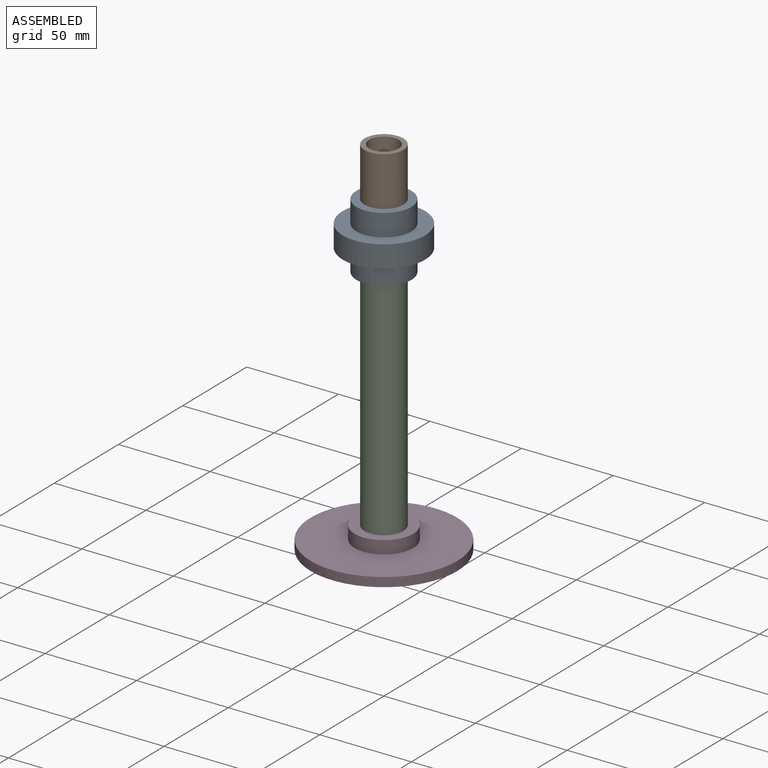
[diagram: assembled view]
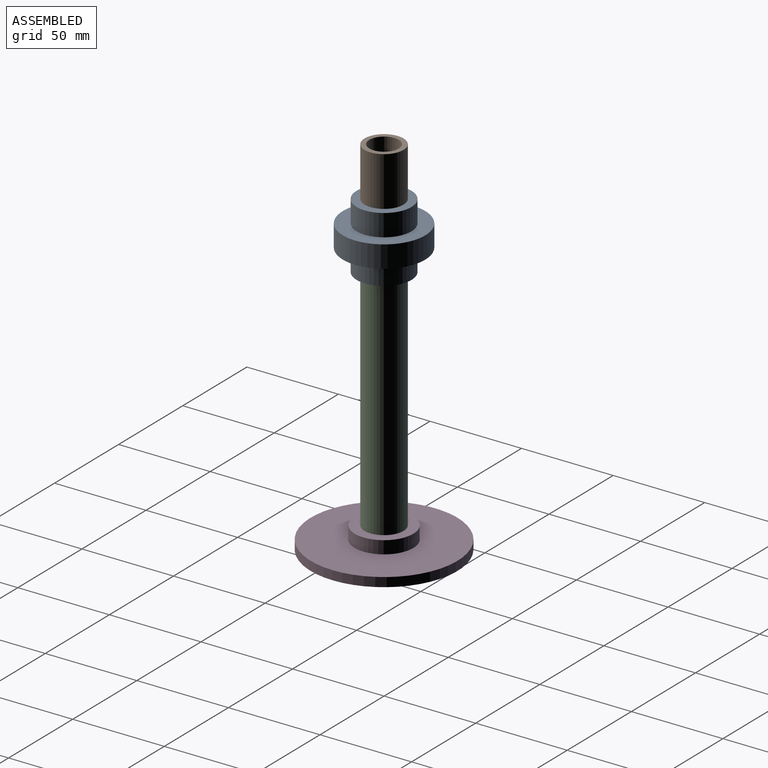
[diagram: assembled view, second angle]
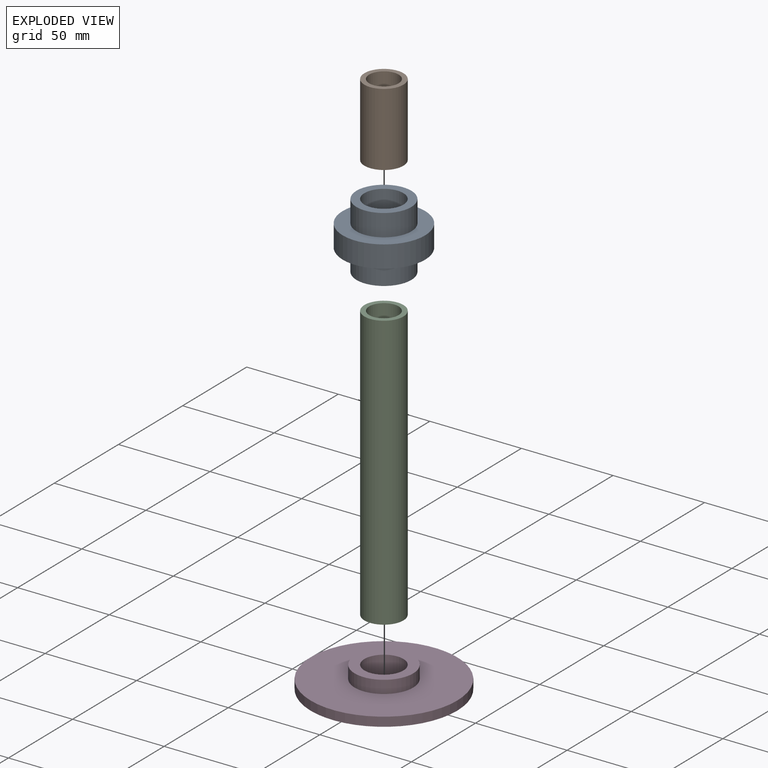
[diagram: exploded view]
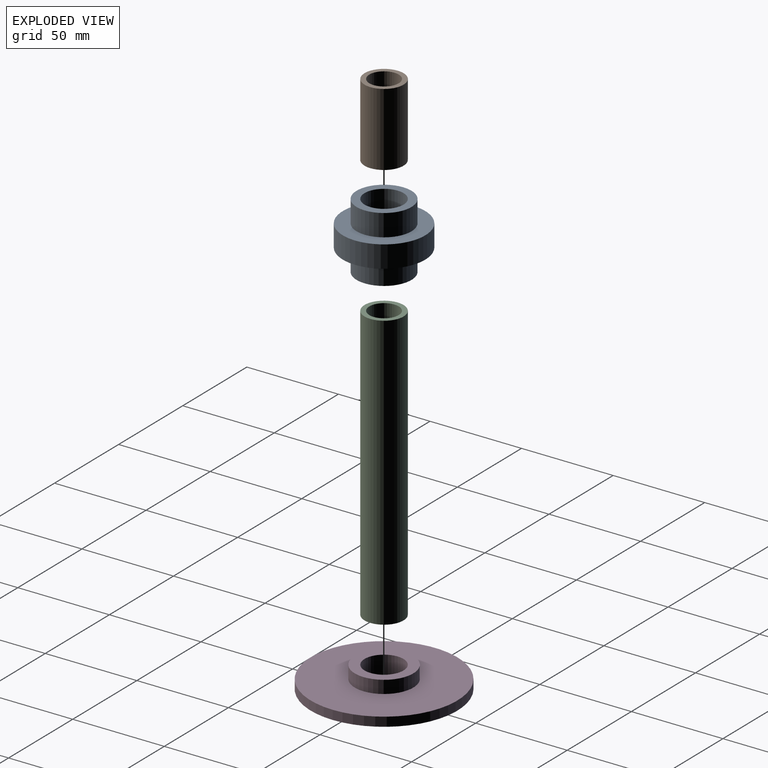
[diagram: exploded view, second angle]
ASSEMBLY  parts=4 mates=3
PART A: 12 faces, bbox 45x45x36 mm
  f0: cylinder r=15mm len=30mm, axis (0,0,-1), area 1131mm2, adj f8,f11
  f1: cylinder r=9.5mm len=19mm, axis (0,0,-1), area 596.9mm2, adj f2,f3
  f2: plane 21.3x21.3mm, normal (0,0,1), area 72.8mm2, adj f1,f5
  f3: plane 21.3x21.3mm, normal (0,0,-1), area 72.8mm2, adj f1,f4
  f4: cylinder r=10.65mm len=21.3mm, axis (0,0,-1), area 869.9mm2, adj f3,f8
  f5: cylinder r=10.65mm len=21.3mm, axis (0,0,-1), area 869.9mm2, adj f2,f7
  f6: cylinder r=15mm len=30mm, axis (0,0,-1), area 1131mm2, adj f7,f10
  f7: plane 30x30mm, normal (0,0,1), area 350.5mm2, adj f5,f6
  f8: plane 30x30mm, normal (0,0,-1), area 350.5mm2, adj f0,f4
  f9: cylinder r=22.5mm len=45mm, axis (0,0,-1), area 1696.5mm2, adj f10,f11
  f10: plane 45x45mm, normal (0,0,1), area 883.6mm2, adj f6,f9
  f11: plane 45x45mm, normal (0,0,-1), area 883.6mm2, adj f0,f9
PART B: 4 faces, bbox 21.3x21.3x40 mm
  f0: cylinder r=8.05mm len=40mm, axis (0,0,-1), area 2023.2mm2, adj f2,f3
  f1: cylinder r=10.65mm len=40mm, axis (0,0,-1), area 2676.6mm2, adj f2,f3
  f2: plane 21.3x21.3mm, normal (0,0,1), area 152.7mm2, adj f0,f1
  f3: plane 21.3x21.3mm, normal (0,0,-1), area 152.7mm2, adj f0,f1
PART C: 4 faces, bbox 21.3x21.3x150 mm
  f0: cylinder r=8.05mm len=150mm, axis (0,0,-1), area 7586.9mm2, adj f2,f3
  f1: cylinder r=10.65mm len=150mm, axis (0,0,-1), area 10037.4mm2, adj f2,f3
  f2: plane 21.3x21.3mm, normal (0,0,1), area 152.7mm2, adj f0,f1
  f3: plane 21.3x21.3mm, normal (0,0,-1), area 152.7mm2, adj f0,f1
PART D: 6 faces, bbox 80x80x12 mm
  f0: cylinder r=10.65mm len=21.3mm, axis (0,0,-1), area 803mm2, adj f2,f3
  f1: cylinder r=16mm len=32mm, axis (0,0,-1), area 703.7mm2, adj f2,f5
  f2: plane 32x32mm, normal (0,0,1), area 447.9mm2, adj f0,f1
  f3: plane 80x80mm, normal (0,0,-1), area 4670.2mm2, adj f0,f4
  f4: cylinder r=40mm len=80mm, axis (0,0,-1), area 1256.6mm2, adj f3,f5
  f5: plane 80x80mm, normal (0,0,1), area 4222.3mm2, adj f1,f4
PLACE A rot(axis=(1,0,0),180deg) t=(50,-50,155)mm
PLACE B rot(axis=(1,0,0),180deg) t=(90,0,200)mm
PLACE C t=(-60,0,0)mm
PLACE D t=(-150,80,0)mm
MATE fastened A.f0 <-> C.f1  axis (0,0,-1) through (0,0,150)mm
MATE fastened D.f0 <-> C.f1  axis (0,0,-1) through (0,0,0)mm
MATE fastened B.f1 <-> A.f0  axis (0,0,-1) through (0,0,160)mm
